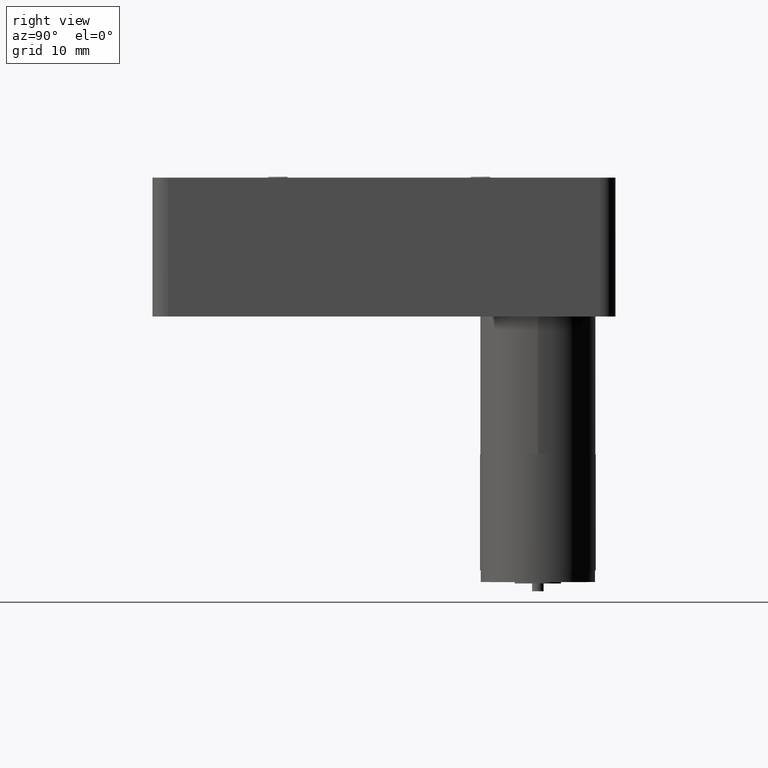
[diagram: clean part render]
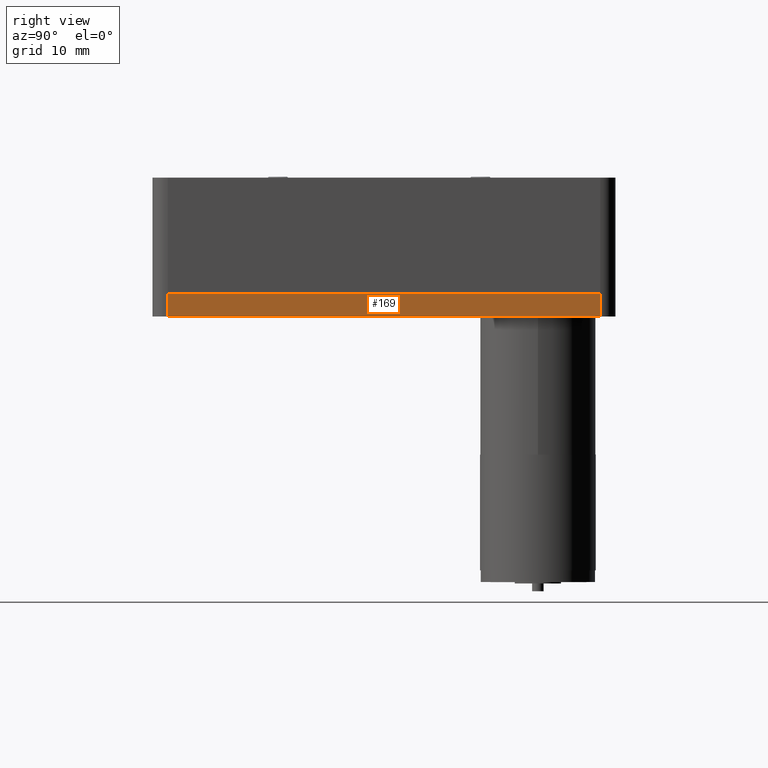
[diagram: same view with one face highlighted and labeled with its STEP entity id]
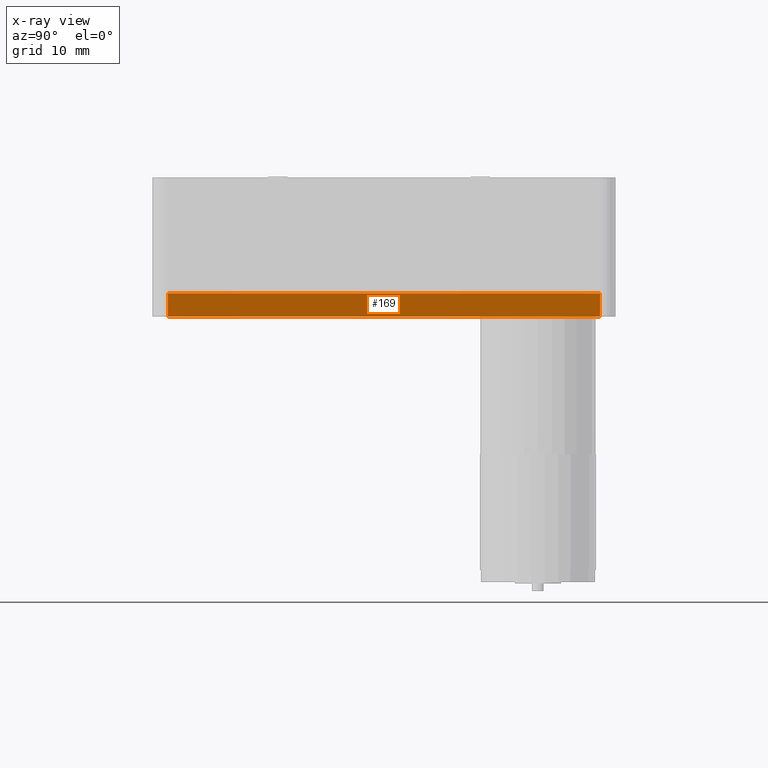
[diagram: x-ray of the same camera — body ghosted, the highlighted face saturated]
A machine part, right view. The second image highlights one B-rep face of the part: STEP entity #169.
The next image is the same camera in x-ray: the body ghosted, the highlighted face saturated — about 0% of this face is hidden behind the body in this view.
In plain terms, the highlighted planar face has unit normal (-1, 0, 0).
Its self-contained STEP definition (entity closure, byte-faithful):
#169 = ADVANCED_FACE ( 'NONE', ( #3276 ), #6910, .F. ) ;
#376 = CARTESIAN_POINT ( 'NONE',  ( 49.99999999999997200, -3.469446951953614200E-015, 0.0000000000000000000 ) ) ;
#385 = CARTESIAN_POINT ( 'NONE',  ( 49.99999999999997200, 1.999999999999994900, 0.0000000000000000000 ) ) ;
#762 = ORIENTED_EDGE ( 'NONE', *, *, #4497, .T. ) ;
#793 = AXIS2_PLACEMENT_3D ( 'NONE', #6960, #798, #872 ) ;
#798 = DIRECTION ( 'NONE',  ( -1.000000000000000000, 0.0000000000000000000, 0.0000000000000000000 ) ) ;
#872 = DIRECTION ( 'NONE',  ( 0.0000000000000000000, 0.0000000000000000000, 1.000000000000000000 ) ) ;
#1139 = CARTESIAN_POINT ( 'NONE',  ( 49.99999999999997200, 57.99999999999999300, -3.000000000000000000 ) ) ;
#1206 = VERTEX_POINT ( 'NONE', #1503 ) ;
#1503 = CARTESIAN_POINT ( 'NONE',  ( 49.99999999999997200, 1.999999999999994900, -3.000000000000000000 ) ) ;
#1725 = VECTOR ( 'NONE', #3049, 1000.000000000000000 ) ;
#1849 = EDGE_CURVE ( 'NONE', #5654, #4793, #4195, .T. ) ;
#1877 = ORIENTED_EDGE ( 'NONE', *, *, #6001, .T. ) ;
#2000 = DIRECTION ( 'NONE',  ( 0.0000000000000000000, 1.000000000000000000, 0.0000000000000000000 ) ) ;
#2550 = DIRECTION ( 'NONE',  ( -0.0000000000000000000, -0.0000000000000000000, 1.000000000000000000 ) ) ;
#2561 = VECTOR ( 'NONE', #2000, 1000.000000000000000 ) ;
#2679 = VERTEX_POINT ( 'NONE', #1139 ) ;
#2784 = VECTOR ( 'NONE', #3550, 1000.000000000000000 ) ;
#2943 = LINE ( 'NONE', #4610, #1725 ) ;
#3000 = CARTESIAN_POINT ( 'NONE',  ( 49.99999999999997200, 1.999999999999994900, 0.0000000000000000000 ) ) ;
#3049 = DIRECTION ( 'NONE',  ( 0.0000000000000000000, 1.000000000000000000, 0.0000000000000000000 ) ) ;
#3276 = FACE_OUTER_BOUND ( 'NONE', #4306, .T. ) ;
#3550 = DIRECTION ( 'NONE',  ( 0.0000000000000000000, 0.0000000000000000000, -1.000000000000000000 ) ) ;
#3826 = ORIENTED_EDGE ( 'NONE', *, *, #1849, .F. ) ;
#4195 = LINE ( 'NONE', #376, #2561 ) ;
#4208 = CARTESIAN_POINT ( 'NONE',  ( 49.99999999999997200, 57.99999999999999300, 0.0000000000000000000 ) ) ;
#4306 = EDGE_LOOP ( 'NONE', ( #3826, #762, #1877, #6974 ) ) ;
#4345 = LINE ( 'NONE', #3000, #2784 ) ;
#4497 = EDGE_CURVE ( 'NONE', #5654, #1206, #4345, .T. ) ;
#4507 = VECTOR ( 'NONE', #2550, 1000.000000000000000 ) ;
#4610 = CARTESIAN_POINT ( 'NONE',  ( 49.99999999999997200, -3.469446951953614200E-015, -3.000000000000000000 ) ) ;
#4793 = VERTEX_POINT ( 'NONE', #4208 ) ;
#4797 = EDGE_CURVE ( 'NONE', #2679, #4793, #6422, .T. ) ;
#5654 = VERTEX_POINT ( 'NONE', #385 ) ;
#5887 = CARTESIAN_POINT ( 'NONE',  ( 49.99999999999997200, 57.99999999999999300, 0.0000000000000000000 ) ) ;
#6001 = EDGE_CURVE ( 'NONE', #1206, #2679, #2943, .T. ) ;
#6422 = LINE ( 'NONE', #5887, #4507 ) ;
#6910 = PLANE ( 'NONE',  #793 ) ;
#6960 = CARTESIAN_POINT ( 'NONE',  ( 49.99999999999997200, -3.469446951953614200E-015, 0.0000000000000000000 ) ) ;
#6974 = ORIENTED_EDGE ( 'NONE', *, *, #4797, .T. ) ;